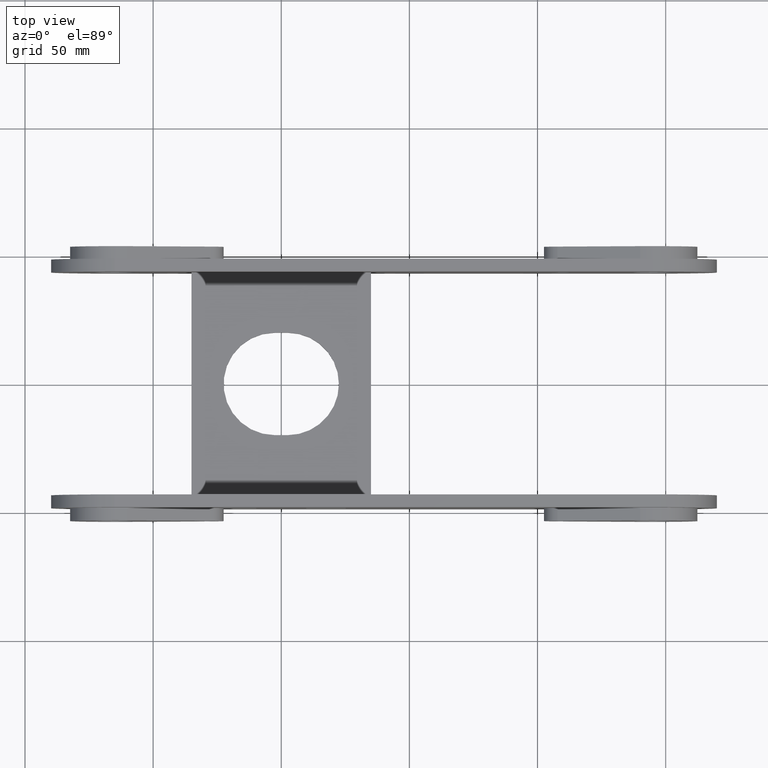
[diagram: clean part render]
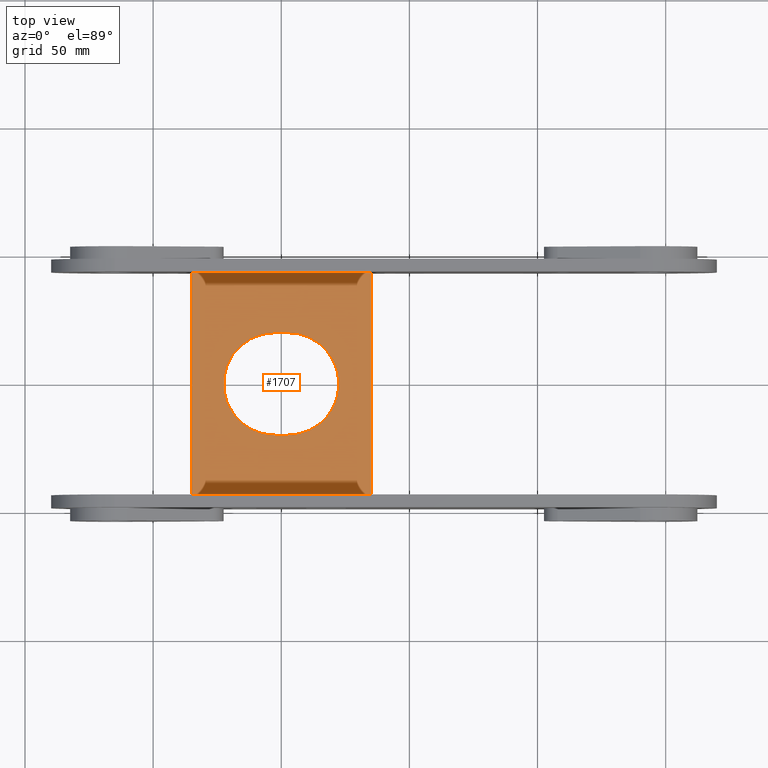
[diagram: same view with one face highlighted and labeled with its STEP entity id]
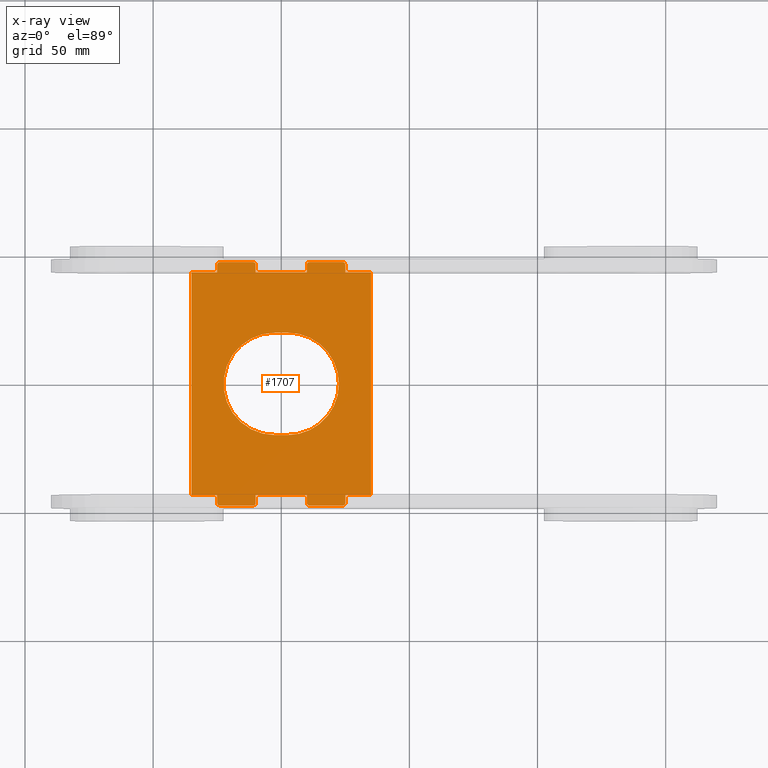
[diagram: x-ray of the same camera — body ghosted, the highlighted face saturated]
A machine part, top view. The second image highlights one B-rep face of the part: STEP entity #1707.
The next image is the same camera in x-ray: the body ghosted, the highlighted face saturated — about 0% of this face is hidden behind the body in this view.
In plain terms, the highlighted planar face has unit normal (0, 0, -1).
Its self-contained STEP definition (entity closure, byte-faithful):
#7 = LINE ( 'NONE', #63, #582 ) ;
#16 = EDGE_CURVE ( 'NONE', #441, #1653, #913, .T. ) ;
#21 = LINE ( 'NONE', #2400, #806 ) ;
#24 = EDGE_CURVE ( 'NONE', #832, #152, #2248, .T. ) ;
#27 = CARTESIAN_POINT ( 'NONE',  ( -24.99999999999998579, -46.49999999999998579, 2.500000000000000000 ) ) ;
#29 = CARTESIAN_POINT ( 'NONE',  ( 35.00000000000000000, 43.50000000000001421, 2.500000000000000000 ) ) ;
#57 = ORIENTED_EDGE ( 'NONE', *, *, #2638, .F. ) ;
#59 = CARTESIAN_POINT ( 'NONE',  ( -24.99999999999998579, 47.49999999999998579, 2.500000000000000000 ) ) ;
#63 = CARTESIAN_POINT ( 'NONE',  ( -2.500000000000000000, 19.99999999999999645, 2.500000000000000000 ) ) ;
#74 = DIRECTION ( 'NONE',  ( -0.000000000000000000, 1.000000000000000000, -0.000000000000000000 ) ) ;
#80 = VECTOR ( 'NONE', #74, 1000.000000000000000 ) ;
#84 = VERTEX_POINT ( 'NONE', #2069 ) ;
#90 = B_SPLINE_CURVE_WITH_KNOTS ( 'NONE', 1,
 ( #1456, #2316 ),
 .UNSPECIFIED., .F., .F.,
 ( 2, 2 ),
 ( 0.6500000000000000222, 0.9749999999999999778 ),
 .UNSPECIFIED. ) ;
#91 = CARTESIAN_POINT ( 'NONE',  ( -24.99999999999998579, -43.50000000000000000, 2.500000000000000000 ) ) ;
#115 = VERTEX_POINT ( 'NONE', #1702 ) ;
#121 = VECTOR ( 'NONE', #2245, 1000.000000000000000 ) ;
#135 = ORIENTED_EDGE ( 'NONE', *, *, #1711, .T. ) ;
#138 = DIRECTION ( 'NONE',  ( -0.000000000000000000, -0.000000000000000000, -1.000000000000000000 ) ) ;
#152 = VERTEX_POINT ( 'NONE', #2361 ) ;
#153 = ORIENTED_EDGE ( 'NONE', *, *, #2667, .T. ) ;
#157 = CARTESIAN_POINT ( 'NONE',  ( 10.00000000000001599, -43.49999999999999289, 2.500000000000000000 ) ) ;
#186 = B_SPLINE_CURVE_WITH_KNOTS ( 'NONE', 1,
 ( #2238, #2021 ),
 .UNSPECIFIED., .F., .F.,
 ( 2, 2 ),
 ( 0.6500000000000000222, 0.9749999999999999778 ),
 .UNSPECIFIED. ) ;
#188 = DIRECTION ( 'NONE',  ( 0.000000000000000000, -1.000000000000000000, 0.000000000000000000 ) ) ;
#217 = CIRCLE ( 'NONE', #2730, 19.99999999999999645 ) ;
#218 = CARTESIAN_POINT ( 'NONE',  ( -9.999999999999987566, -46.49999999999998579, 2.500000000000000000 ) ) ;
#221 = EDGE_CURVE ( 'NONE', #2079, #2713, #1276, .T. ) ;
#248 = CARTESIAN_POINT ( 'NONE',  ( -23.99999999999998579, 47.49999999999998579, 2.500000000000000000 ) ) ;
#258 = CIRCLE ( 'NONE', #2545, 1.000000000000000888 ) ;
#274 = DIRECTION ( 'NONE',  ( 0.000000000000000000, -1.000000000000000000, 0.000000000000000000 ) ) ;
#285 = LINE ( 'NONE', #506, #80 ) ;
#303 = VECTOR ( 'NONE', #2471, 1000.000000000000000 ) ;
#338 = VECTOR ( 'NONE', #188, 1000.000000000000000 ) ;
#369 = CARTESIAN_POINT ( 'NONE',  ( 0.000000000000000000, 0.000000000000000000, 2.500000000000000000 ) ) ;
#382 = DIRECTION ( 'NONE',  ( 0.000000000000000000, -1.000000000000000000, 0.000000000000000000 ) ) ;
#402 = ORIENTED_EDGE ( 'NONE', *, *, #1968, .F. ) ;
#407 = DIRECTION ( 'NONE',  ( -0.000000000000000000, 1.000000000000000000, -0.000000000000000000 ) ) ;
#438 = CARTESIAN_POINT ( 'NONE',  ( 25.00000000000001421, -43.49999999999998579, 2.500000000000000000 ) ) ;
#440 = CARTESIAN_POINT ( 'NONE',  ( -2.500000000000000000, -19.99999999999999645, 2.500000000000000000 ) ) ;
#441 = VERTEX_POINT ( 'NONE', #1866 ) ;
#445 = ORIENTED_EDGE ( 'NONE', *, *, #1360, .T. ) ;
#450 = B_SPLINE_CURVE_WITH_KNOTS ( 'NONE', 1,
 ( #248, #531 ),
 .UNSPECIFIED., .F., .F.,
 ( 2, 2 ),
 ( 0.6500000000000000222, 0.9749999999999999778 ),
 .UNSPECIFIED. ) ;
#469 = DIRECTION ( 'NONE',  ( 0.000000000000000000, 0.000000000000000000, 1.000000000000000000 ) ) ;
#500 = ORIENTED_EDGE ( 'NONE', *, *, #1961, .F. ) ;
#506 = CARTESIAN_POINT ( 'NONE',  ( -24.99999999999998579, -47.49999999999998579, 2.500000000000000000 ) ) ;
#511 = ORIENTED_EDGE ( 'NONE', *, *, #513, .F. ) ;
#513 = EDGE_CURVE ( 'NONE', #1562, #2079, #959, .T. ) ;
#529 = CARTESIAN_POINT ( 'NONE',  ( 25.00000000000001421, 43.50000000000001421, 2.500000000000000000 ) ) ;
#531 = CARTESIAN_POINT ( 'NONE',  ( -10.99999999999998934, 47.49999999999998579, 2.500000000000000000 ) ) ;
#539 = CIRCLE ( 'NONE', #2464, 1.000000000000000888 ) ;
#540 = CARTESIAN_POINT ( 'NONE',  ( 24.00000000000001421, 46.49999999999998579, 2.500000000000000000 ) ) ;
#551 = CARTESIAN_POINT ( 'NONE',  ( -24.99999999999998579, 46.49999999999998579, 2.500000000000000000 ) ) ;
#554 = VERTEX_POINT ( 'NONE', #2148 ) ;
#558 = CARTESIAN_POINT ( 'NONE',  ( 25.00000000000001421, -47.49999999999998579, 2.500000000000000000 ) ) ;
#561 = EDGE_CURVE ( 'NONE', #579, #1953, #1936, .T. ) ;
#563 = CARTESIAN_POINT ( 'NONE',  ( 35.00000000000001421, -43.49999999999998579, 2.500000000000000000 ) ) ;
#571 = EDGE_CURVE ( 'NONE', #115, #1306, #2107, .T. ) ;
#579 = VERTEX_POINT ( 'NONE', #1908 ) ;
#582 = VECTOR ( 'NONE', #1515, 1000.000000000000000 ) ;
#605 = ORIENTED_EDGE ( 'NONE', *, *, #2260, .F. ) ;
#616 = AXIS2_PLACEMENT_3D ( 'NONE', #540, #138, #762 ) ;
#665 = CARTESIAN_POINT ( 'NONE',  ( 35.00000000000001421, -43.49999999999998579, 2.500000000000000000 ) ) ;
#672 = AXIS2_PLACEMENT_3D ( 'NONE', #2525, #2115, #1691 ) ;
#727 = VERTEX_POINT ( 'NONE', #954 ) ;
#741 = DIRECTION ( 'NONE',  ( -0.000000000000000000, 0.000000000000000000, 1.000000000000000000 ) ) ;
#745 = DIRECTION ( 'NONE',  ( 0.000000000000000000, 0.000000000000000000, -1.000000000000000000 ) ) ;
#751 = CARTESIAN_POINT ( 'NONE',  ( -9.999999999999987566, 43.50000000000000711, 2.500000000000000000 ) ) ;
#752 = DIRECTION ( 'NONE',  ( -0.000000000000000000, 1.000000000000000000, -0.000000000000000000 ) ) ;
#754 = ORIENTED_EDGE ( 'NONE', *, *, #24, .T. ) ;
#762 = DIRECTION ( 'NONE',  ( 1.000000000000000000, 0.000000000000000000, 0.000000000000000000 ) ) ;
#782 = ORIENTED_EDGE ( 'NONE', *, *, #1758, .T. ) ;
#801 = ORIENTED_EDGE ( 'NONE', *, *, #820, .F. ) ;
#806 = VECTOR ( 'NONE', #883, 1000.000000000000000 ) ;
#818 = CARTESIAN_POINT ( 'NONE',  ( 25.00000000000001421, -46.49999999999998579, 2.500000000000000000 ) ) ;
#820 = EDGE_CURVE ( 'NONE', #1279, #2562, #450, .T. ) ;
#832 = VERTEX_POINT ( 'NONE', #665 ) ;
#836 = ORIENTED_EDGE ( 'NONE', *, *, #2366, .T. ) ;
#840 = ORIENTED_EDGE ( 'NONE', *, *, #1380, .F. ) ;
#861 = EDGE_LOOP ( 'NONE', ( #1079, #840, #1429, #500, #1284 ) ) ;
#869 = EDGE_CURVE ( 'NONE', #1953, #1265, #2627, .T. ) ;
#883 = DIRECTION ( 'NONE',  ( -1.000000000000000000, -1.982541115402065110E-16, 0.000000000000000000 ) ) ;
#893 = DIRECTION ( 'NONE',  ( -0.000000000000000000, 0.000000000000000000, 1.000000000000000000 ) ) ;
#913 = CIRCLE ( 'NONE', #1807, 1.000000000000000888 ) ;
#938 = ORIENTED_EDGE ( 'NONE', *, *, #2630, .T. ) ;
#939 = CARTESIAN_POINT ( 'NONE',  ( -23.99999999999998579, -47.49999999999998579, 2.500000000000000000 ) ) ;
#944 = DIRECTION ( 'NONE',  ( 1.000000000000000000, 0.000000000000000000, 0.000000000000000000 ) ) ;
#950 = DIRECTION ( 'NONE',  ( 1.000000000000000000, 0.000000000000000000, 0.000000000000000000 ) ) ;
#951 = CARTESIAN_POINT ( 'NONE',  ( -23.99999999999998579, 47.49999999999998579, 2.500000000000000000 ) ) ;
#954 = CARTESIAN_POINT ( 'NONE',  ( 10.00000000000001599, 43.49999999999998579, 2.500000000000000000 ) ) ;
#958 = CARTESIAN_POINT ( 'NONE',  ( -35.00000000000000000, 43.50000000000000000, 2.500000000000000000 ) ) ;
#959 = CIRCLE ( 'NONE', #616, 1.000000000000000888 ) ;
#972 = VECTOR ( 'NONE', #1204, 1000.000000000000000 ) ;
#975 = CIRCLE ( 'NONE', #2588, 1.000000000000000888 ) ;
#995 = ORIENTED_EDGE ( 'NONE', *, *, #1001, .T. ) ;
#1001 = EDGE_CURVE ( 'NONE', #1874, #2157, #2325, .T. ) ;
#1002 = CARTESIAN_POINT ( 'NONE',  ( 24.00000000000001421, -47.49999999999998579, 2.500000000000000000 ) ) ;
#1008 = VECTOR ( 'NONE', #1498, 1000.000000000000000 ) ;
#1017 = VECTOR ( 'NONE', #1070, 1000.000000000000000 ) ;
#1020 = CARTESIAN_POINT ( 'NONE',  ( 2.499999999999996447, -20.00000000000000000, 2.500000000000000000 ) ) ;
#1042 = DIRECTION ( 'NONE',  ( -0.000000000000000000, -0.000000000000000000, -1.000000000000000000 ) ) ;
#1053 = EDGE_CURVE ( 'NONE', #1177, #1245, #2539, .T. ) ;
#1064 = VECTOR ( 'NONE', #1225, 1000.000000000000000 ) ;
#1069 = CARTESIAN_POINT ( 'NONE',  ( -2.500000000000000000, 19.99999999999999645, 2.500000000000000000 ) ) ;
#1070 = DIRECTION ( 'NONE',  ( -1.000000000000000000, -1.982541115402065110E-16, 0.000000000000000000 ) ) ;
#1074 = CARTESIAN_POINT ( 'NONE',  ( 11.00000000000001599, 46.49999999999998579, 2.500000000000000000 ) ) ;
#1079 = ORIENTED_EDGE ( 'NONE', *, *, #561, .F. ) ;
#1097 = LINE ( 'NONE', #29, #1017 ) ;
#1112 = CARTESIAN_POINT ( 'NONE',  ( -2.500000000000000000, -3.469446951953614189E-15, 2.500000000000000000 ) ) ;
#1116 = ORIENTED_EDGE ( 'NONE', *, *, #1170, .F. ) ;
#1118 = DIRECTION ( 'NONE',  ( 1.000000000000000000, 0.000000000000000000, 0.000000000000000000 ) ) ;
#1123 = CARTESIAN_POINT ( 'NONE',  ( -35.00000000000000000, 43.50000000000000000, 2.500000000000000000 ) ) ;
#1127 = CARTESIAN_POINT ( 'NONE',  ( 25.00000000000001421, 46.49999999999998579, 2.500000000000000000 ) ) ;
#1141 = DIRECTION ( 'NONE',  ( 1.000000000000000000, 0.000000000000000000, 0.000000000000000000 ) ) ;
#1153 = AXIS2_PLACEMENT_3D ( 'NONE', #369, #745, #1583 ) ;
#1164 = CARTESIAN_POINT ( 'NONE',  ( 22.49999999999999645, -3.469446951953614189E-15, 2.500000000000000000 ) ) ;
#1170 = EDGE_CURVE ( 'NONE', #1808, #1279, #1552, .T. ) ;
#1177 = VERTEX_POINT ( 'NONE', #27 ) ;
#1183 = CARTESIAN_POINT ( 'NONE',  ( -24.99999999999998579, 43.49999999999998579, 2.500000000000000000 ) ) ;
#1184 = ORIENTED_EDGE ( 'NONE', *, *, #2729, .T. ) ;
#1195 = LINE ( 'NONE', #1851, #1064 ) ;
#1201 = VERTEX_POINT ( 'NONE', #218 ) ;
#1204 = DIRECTION ( 'NONE',  ( 1.595148023886719315E-16, -1.000000000000000000, 0.000000000000000000 ) ) ;
#1208 = VERTEX_POINT ( 'NONE', #1069 ) ;
#1224 = CARTESIAN_POINT ( 'NONE',  ( 11.00000000000001599, -46.49999999999998579, 2.500000000000000000 ) ) ;
#1225 = DIRECTION ( 'NONE',  ( 0.000000000000000000, -1.000000000000000000, 0.000000000000000000 ) ) ;
#1245 = VERTEX_POINT ( 'NONE', #2656 ) ;
#1249 = CIRCLE ( 'NONE', #1253, 1.000000000000000888 ) ;
#1253 = AXIS2_PLACEMENT_3D ( 'NONE', #2226, #2211, #1141 ) ;
#1260 = EDGE_CURVE ( 'NONE', #554, #1495, #2423, .T. ) ;
#1265 = VERTEX_POINT ( 'NONE', #1164 ) ;
#1269 = CARTESIAN_POINT ( 'NONE',  ( -23.99999999999998579, -46.49999999999998579, 2.500000000000000000 ) ) ;
#1276 = LINE ( 'NONE', #2109, #338 ) ;
#1279 = VERTEX_POINT ( 'NONE', #951 ) ;
#1284 = ORIENTED_EDGE ( 'NONE', *, *, #869, .F. ) ;
#1285 = DIRECTION ( 'NONE',  ( -0.000000000000000000, -0.000000000000000000, -1.000000000000000000 ) ) ;
#1306 = VERTEX_POINT ( 'NONE', #751 ) ;
#1335 = CARTESIAN_POINT ( 'NONE',  ( 35.00000000000001421, -43.49999999999998579, 2.500000000000000000 ) ) ;
#1343 = CARTESIAN_POINT ( 'NONE',  ( 24.00000000000001421, 47.49999999999998579, 2.500000000000000000 ) ) ;
#1346 = ORIENTED_EDGE ( 'NONE', *, *, #571, .F. ) ;
#1348 = ORIENTED_EDGE ( 'NONE', *, *, #1469, .T. ) ;
#1357 = DIRECTION ( 'NONE',  ( 0.000000000000000000, 0.000000000000000000, 1.000000000000000000 ) ) ;
#1360 = EDGE_CURVE ( 'NONE', #1245, #2728, #1975, .T. ) ;
#1372 = VECTOR ( 'NONE', #752, 1000.000000000000000 ) ;
#1380 = EDGE_CURVE ( 'NONE', #1208, #579, #217, .T. ) ;
#1386 = CARTESIAN_POINT ( 'NONE',  ( 35.00000000000001421, -43.49999999999998579, 2.500000000000000000 ) ) ;
#1395 = VERTEX_POINT ( 'NONE', #1123 ) ;
#1403 = ORIENTED_EDGE ( 'NONE', *, *, #16, .T. ) ;
#1416 = LINE ( 'NONE', #1386, #121 ) ;
#1420 = AXIS2_PLACEMENT_3D ( 'NONE', #1736, #469, #1959 ) ;
#1429 = ORIENTED_EDGE ( 'NONE', *, *, #1624, .F. ) ;
#1448 = CARTESIAN_POINT ( 'NONE',  ( 35.00000000000000000, 43.50000000000001421, 2.500000000000000000 ) ) ;
#1456 = CARTESIAN_POINT ( 'NONE',  ( 11.00000000000001599, 47.49999999999998579, 2.500000000000000000 ) ) ;
#1469 = EDGE_CURVE ( 'NONE', #2544, #727, #1195, .T. ) ;
#1475 = VECTOR ( 'NONE', #274, 1000.000000000000000 ) ;
#1481 = DIRECTION ( 'NONE',  ( 1.000000000000000000, 0.000000000000000000, 0.000000000000000000 ) ) ;
#1495 = VERTEX_POINT ( 'NONE', #157 ) ;
#1498 = DIRECTION ( 'NONE',  ( 1.000000000000000000, 0.000000000000000000, 0.000000000000000000 ) ) ;
#1515 = DIRECTION ( 'NONE',  ( -1.000000000000000000, -0.000000000000000000, -0.000000000000000000 ) ) ;
#1548 = CARTESIAN_POINT ( 'NONE',  ( -10.99999999999998934, 47.49999999999998579, 2.500000000000000000 ) ) ;
#1552 = CIRCLE ( 'NONE', #2044, 1.000000000000000888 ) ;
#1562 = VERTEX_POINT ( 'NONE', #1343 ) ;
#1568 = LINE ( 'NONE', #59, #1475 ) ;
#1583 = DIRECTION ( 'NONE',  ( -1.000000000000000000, 0.000000000000000000, -0.000000000000000000 ) ) ;
#1590 = DIRECTION ( 'NONE',  ( -1.000000000000000000, -1.982541115402065110E-16, 0.000000000000000000 ) ) ;
#1598 = PLANE ( 'NONE',  #1153 ) ;
#1606 = CARTESIAN_POINT ( 'NONE',  ( -10.99999999999998934, -47.49999999999998579, 2.500000000000000000 ) ) ;
#1624 = EDGE_CURVE ( 'NONE', #84, #1208, #7, .T. ) ;
#1653 = VERTEX_POINT ( 'NONE', #2162 ) ;
#1674 = EDGE_CURVE ( 'NONE', #2195, #1395, #21, .T. ) ;
#1675 = VERTEX_POINT ( 'NONE', #2190 ) ;
#1691 = DIRECTION ( 'NONE',  ( 1.000000000000000000, 0.000000000000000000, 0.000000000000000000 ) ) ;
#1702 = CARTESIAN_POINT ( 'NONE',  ( -9.999999999999987566, 46.49999999999998579, 2.500000000000000000 ) ) ;
#1707 = ADVANCED_FACE ( 'NONE', ( #2620, #2063 ), #1598, .F. ) ;
#1709 = VERTEX_POINT ( 'NONE', #91 ) ;
#1711 = EDGE_CURVE ( 'NONE', #1395, #1829, #1800, .T. ) ;
#1736 = CARTESIAN_POINT ( 'NONE',  ( 2.500000000000000000, -3.469446951953614189E-15, 2.500000000000000000 ) ) ;
#1758 = EDGE_CURVE ( 'NONE', #2728, #1201, #258, .T. ) ;
#1767 = ORIENTED_EDGE ( 'NONE', *, *, #2032, .T. ) ;
#1791 = EDGE_CURVE ( 'NONE', #1829, #1709, #1416, .T. ) ;
#1794 = DIRECTION ( 'NONE',  ( 1.000000000000000000, 0.000000000000000000, 0.000000000000000000 ) ) ;
#1798 = CARTESIAN_POINT ( 'NONE',  ( 24.00000000000001421, -46.49999999999998579, 2.500000000000000000 ) ) ;
#1800 = LINE ( 'NONE', #958, #972 ) ;
#1807 = AXIS2_PLACEMENT_3D ( 'NONE', #1224, #1819, #950 ) ;
#1808 = VERTEX_POINT ( 'NONE', #551 ) ;
#1819 = DIRECTION ( 'NONE',  ( -0.000000000000000000, 0.000000000000000000, 1.000000000000000000 ) ) ;
#1829 = VERTEX_POINT ( 'NONE', #2709 ) ;
#1837 = EDGE_CURVE ( 'NONE', #2157, #832, #2287, .T. ) ;
#1842 = LINE ( 'NONE', #2270, #303 ) ;
#1849 = ORIENTED_EDGE ( 'NONE', *, *, #1674, .T. ) ;
#1851 = CARTESIAN_POINT ( 'NONE',  ( 10.00000000000001599, 47.49999999999998579, 2.500000000000000000 ) ) ;
#1866 = CARTESIAN_POINT ( 'NONE',  ( 10.00000000000001599, -46.49999999999998579, 2.500000000000000000 ) ) ;
#1874 = VERTEX_POINT ( 'NONE', #818 ) ;
#1908 = CARTESIAN_POINT ( 'NONE',  ( -2.500000000000000000, -19.99999999999999645, 2.500000000000000000 ) ) ;
#1911 = VECTOR ( 'NONE', #407, 1000.000000000000000 ) ;
#1936 = LINE ( 'NONE', #440, #1008 ) ;
#1941 = CARTESIAN_POINT ( 'NONE',  ( 10.00000000000001599, -47.49999999999998579, 2.500000000000000000 ) ) ;
#1942 = ORIENTED_EDGE ( 'NONE', *, *, #1053, .T. ) ;
#1953 = VERTEX_POINT ( 'NONE', #1020 ) ;
#1959 = DIRECTION ( 'NONE',  ( 1.000000000000000000, 0.000000000000000000, 0.000000000000000000 ) ) ;
#1961 = EDGE_CURVE ( 'NONE', #1265, #84, #2639, .T. ) ;
#1964 = VECTOR ( 'NONE', #2274, 1000.000000000000000 ) ;
#1968 = EDGE_CURVE ( 'NONE', #1675, #1562, #90, .T. ) ;
#1971 = CARTESIAN_POINT ( 'NONE',  ( 10.00000000000001599, 46.49999999999998579, 2.500000000000000000 ) ) ;
#1975 = B_SPLINE_CURVE_WITH_KNOTS ( 'NONE', 1,
 ( #939, #2629 ),
 .UNSPECIFIED., .F., .F.,
 ( 2, 2 ),
 ( 0.6500000000000000222, 0.9749999999999999778 ),
 .UNSPECIFIED. ) ;
#1993 = VECTOR ( 'NONE', #382, 1000.000000000000000 ) ;
#1995 = DIRECTION ( 'NONE',  ( 1.000000000000000000, 1.982541115402065110E-16, -0.000000000000000000 ) ) ;
#2012 = VERTEX_POINT ( 'NONE', #1002 ) ;
#2021 = CARTESIAN_POINT ( 'NONE',  ( 24.00000000000001421, -47.49999999999998579, 2.500000000000000000 ) ) ;
#2023 = ORIENTED_EDGE ( 'NONE', *, *, #2055, .F. ) ;
#2032 = EDGE_CURVE ( 'NONE', #1808, #2195, #1568, .T. ) ;
#2044 = AXIS2_PLACEMENT_3D ( 'NONE', #2122, #1042, #1481 ) ;
#2055 = EDGE_CURVE ( 'NONE', #2544, #1675, #975, .T. ) ;
#2063 = FACE_OUTER_BOUND ( 'NONE', #2210, .T. ) ;
#2069 = CARTESIAN_POINT ( 'NONE',  ( 2.500000000000000000, 19.99999999999999645, 2.500000000000000000 ) ) ;
#2079 = VERTEX_POINT ( 'NONE', #1127 ) ;
#2107 = LINE ( 'NONE', #2319, #1993 ) ;
#2109 = CARTESIAN_POINT ( 'NONE',  ( 25.00000000000001421, 47.49999999999998579, 2.500000000000000000 ) ) ;
#2115 = DIRECTION ( 'NONE',  ( 0.000000000000000000, 0.000000000000000000, 1.000000000000000000 ) ) ;
#2122 = CARTESIAN_POINT ( 'NONE',  ( -23.99999999999998579, 46.49999999999998579, 2.500000000000000000 ) ) ;
#2124 = ORIENTED_EDGE ( 'NONE', *, *, #1837, .T. ) ;
#2125 = VECTOR ( 'NONE', #1590, 1000.000000000000000 ) ;
#2148 = CARTESIAN_POINT ( 'NONE',  ( -9.999999999999987566, -43.49999999999998579, 2.500000000000000000 ) ) ;
#2157 = VERTEX_POINT ( 'NONE', #438 ) ;
#2162 = CARTESIAN_POINT ( 'NONE',  ( 11.00000000000001599, -47.49999999999998579, 2.500000000000000000 ) ) ;
#2165 = ORIENTED_EDGE ( 'NONE', *, *, #2256, .T. ) ;
#2170 = ORIENTED_EDGE ( 'NONE', *, *, #1791, .T. ) ;
#2190 = CARTESIAN_POINT ( 'NONE',  ( 11.00000000000001599, 47.49999999999998579, 2.500000000000000000 ) ) ;
#2195 = VERTEX_POINT ( 'NONE', #1183 ) ;
#2210 = EDGE_LOOP ( 'NONE', ( #135, #2170, #605, #1942, #445, #782, #2165, #2536, #57, #1403, #1184, #836, #995, #2124, #754, #153, #2337, #511, #402, #2023, #1348, #938, #1346, #2340, #801, #1116, #1767, #1849 ) ) ;
#2211 = DIRECTION ( 'NONE',  ( -0.000000000000000000, -0.000000000000000000, -1.000000000000000000 ) ) ;
#2226 = CARTESIAN_POINT ( 'NONE',  ( -10.99999999999998934, 46.49999999999998579, 2.500000000000000000 ) ) ;
#2229 = DIRECTION ( 'NONE',  ( -0.000000000000000000, 0.000000000000000000, 1.000000000000000000 ) ) ;
#2238 = CARTESIAN_POINT ( 'NONE',  ( 11.00000000000001599, -47.49999999999998579, 2.500000000000000000 ) ) ;
#2245 = DIRECTION ( 'NONE',  ( 1.000000000000000000, 1.982541115402065110E-16, -0.000000000000000000 ) ) ;
#2248 = LINE ( 'NONE', #1448, #2311 ) ;
#2256 = EDGE_CURVE ( 'NONE', #1201, #554, #1842, .T. ) ;
#2260 = EDGE_CURVE ( 'NONE', #1177, #1709, #285, .T. ) ;
#2266 = LINE ( 'NONE', #2657, #2125 ) ;
#2270 = CARTESIAN_POINT ( 'NONE',  ( -9.999999999999987566, -47.49999999999998579, 2.500000000000000000 ) ) ;
#2272 = VECTOR ( 'NONE', #1995, 1000.000000000000000 ) ;
#2274 = DIRECTION ( 'NONE',  ( 1.000000000000000000, 1.982541115402065110E-16, -0.000000000000000000 ) ) ;
#2287 = LINE ( 'NONE', #563, #1964 ) ;
#2293 = DIRECTION ( 'NONE',  ( -1.595148023886719315E-16, 1.000000000000000000, -0.000000000000000000 ) ) ;
#2311 = VECTOR ( 'NONE', #2293, 1000.000000000000000 ) ;
#2316 = CARTESIAN_POINT ( 'NONE',  ( 24.00000000000001421, 47.49999999999998579, 2.500000000000000000 ) ) ;
#2319 = CARTESIAN_POINT ( 'NONE',  ( -9.999999999999987566, 47.49999999999998579, 2.500000000000000000 ) ) ;
#2325 = LINE ( 'NONE', #558, #1911 ) ;
#2337 = ORIENTED_EDGE ( 'NONE', *, *, #221, .F. ) ;
#2340 = ORIENTED_EDGE ( 'NONE', *, *, #2341, .F. ) ;
#2341 = EDGE_CURVE ( 'NONE', #2562, #115, #1249, .T. ) ;
#2361 = CARTESIAN_POINT ( 'NONE',  ( 35.00000000000000000, 43.50000000000001421, 2.500000000000000000 ) ) ;
#2366 = EDGE_CURVE ( 'NONE', #2012, #1874, #539, .T. ) ;
#2400 = CARTESIAN_POINT ( 'NONE',  ( 35.00000000000000000, 43.50000000000001421, 2.500000000000000000 ) ) ;
#2423 = LINE ( 'NONE', #1335, #2272 ) ;
#2455 = DIRECTION ( 'NONE',  ( 1.000000000000000000, 0.000000000000000000, 0.000000000000000000 ) ) ;
#2464 = AXIS2_PLACEMENT_3D ( 'NONE', #1798, #741, #2455 ) ;
#2471 = DIRECTION ( 'NONE',  ( -0.000000000000000000, 1.000000000000000000, -0.000000000000000000 ) ) ;
#2525 = CARTESIAN_POINT ( 'NONE',  ( 2.500000000000000000, -3.469446951953614189E-15, 2.500000000000000000 ) ) ;
#2536 = ORIENTED_EDGE ( 'NONE', *, *, #1260, .T. ) ;
#2539 = CIRCLE ( 'NONE', #2766, 1.000000000000000888 ) ;
#2544 = VERTEX_POINT ( 'NONE', #1971 ) ;
#2545 = AXIS2_PLACEMENT_3D ( 'NONE', #2694, #2229, #944 ) ;
#2562 = VERTEX_POINT ( 'NONE', #1548 ) ;
#2571 = LINE ( 'NONE', #1941, #1372 ) ;
#2585 = DIRECTION ( 'NONE',  ( 1.000000000000000000, 0.000000000000000000, 0.000000000000000000 ) ) ;
#2588 = AXIS2_PLACEMENT_3D ( 'NONE', #1074, #1285, #1118 ) ;
#2620 = FACE_BOUND ( 'NONE', #861, .T. ) ;
#2627 = CIRCLE ( 'NONE', #1420, 19.99999999999999645 ) ;
#2629 = CARTESIAN_POINT ( 'NONE',  ( -10.99999999999998934, -47.49999999999998579, 2.500000000000000000 ) ) ;
#2630 = EDGE_CURVE ( 'NONE', #727, #1306, #1097, .T. ) ;
#2638 = EDGE_CURVE ( 'NONE', #441, #1495, #2571, .T. ) ;
#2639 = CIRCLE ( 'NONE', #672, 19.99999999999999645 ) ;
#2656 = CARTESIAN_POINT ( 'NONE',  ( -23.99999999999998579, -47.49999999999998579, 2.500000000000000000 ) ) ;
#2657 = CARTESIAN_POINT ( 'NONE',  ( 35.00000000000000000, 43.50000000000001421, 2.500000000000000000 ) ) ;
#2667 = EDGE_CURVE ( 'NONE', #152, #2713, #2266, .T. ) ;
#2694 = CARTESIAN_POINT ( 'NONE',  ( -10.99999999999998934, -46.49999999999998579, 2.500000000000000000 ) ) ;
#2709 = CARTESIAN_POINT ( 'NONE',  ( -34.99999999999999289, -43.50000000000000000, 2.500000000000000000 ) ) ;
#2713 = VERTEX_POINT ( 'NONE', #529 ) ;
#2728 = VERTEX_POINT ( 'NONE', #1606 ) ;
#2729 = EDGE_CURVE ( 'NONE', #1653, #2012, #186, .T. ) ;
#2730 = AXIS2_PLACEMENT_3D ( 'NONE', #1112, #1357, #1794 ) ;
#2766 = AXIS2_PLACEMENT_3D ( 'NONE', #1269, #893, #2585 ) ;